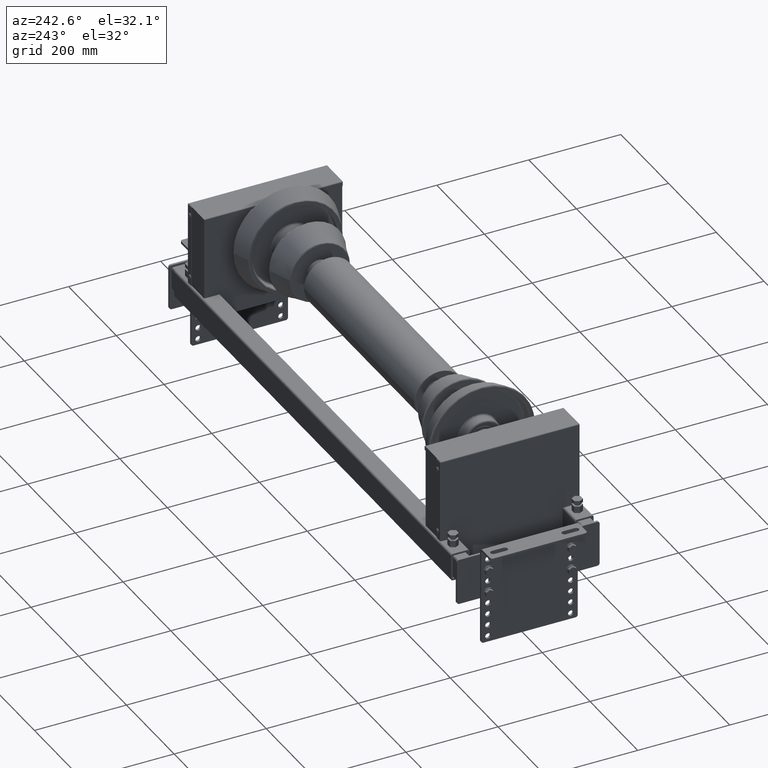
[diagram: clean part render]
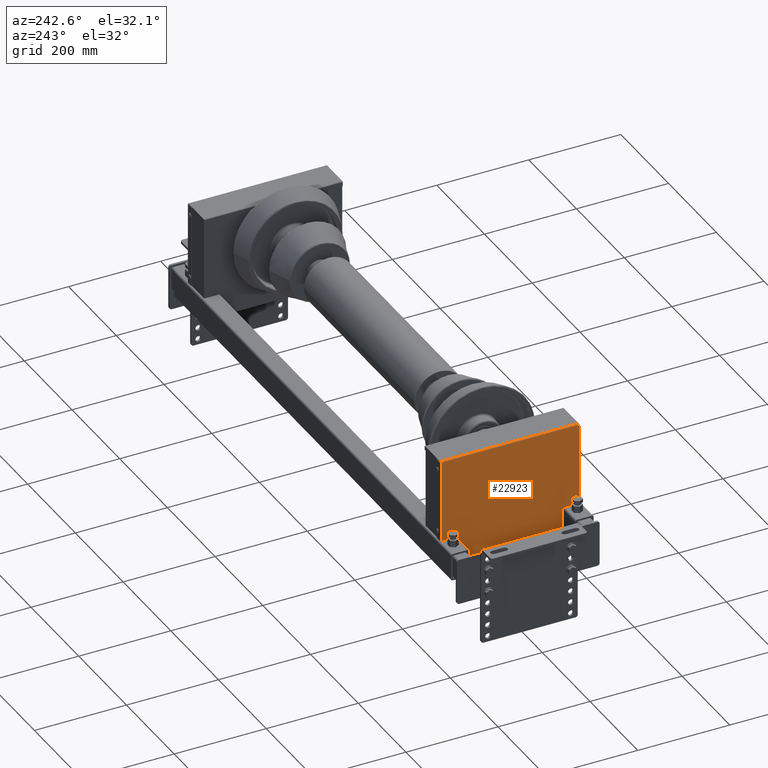
[diagram: same view with one face highlighted and labeled with its STEP entity id]
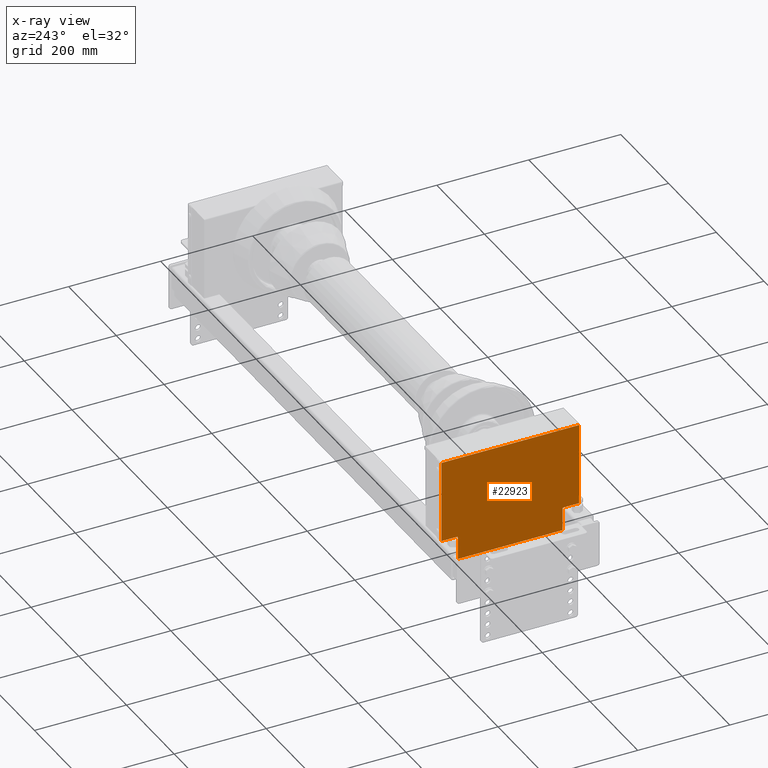
[diagram: x-ray of the same camera — body ghosted, the highlighted face saturated]
A machine part, auxiliary view. The second image highlights one B-rep face of the part: STEP entity #22923.
The next image is the same camera in x-ray: the body ghosted, the highlighted face saturated — about 0% of this face is hidden behind the body in this view.
In plain terms, the highlighted planar face has unit normal (1, 0, -0).
Its self-contained STEP definition (entity closure, byte-faithful):
#22005=CARTESIAN_POINT('',(-56.0,-93.500000000000114,-0.500000000000000));
#22006=VERTEX_POINT('',#22005);
#22007=CARTESIAN_POINT('',(-54.0,-95.500000000000114,-0.500000000000000));
#22008=VERTEX_POINT('',#22007);
#22009=CARTESIAN_POINT('',(-56.0,-95.500000000000114,-0.500000000000000));
#22010=DIRECTION('',(0.0,0.0,-1.000000000000000));
#22011=DIRECTION('',(0.707106781186548,0.707106781186548,0.0));
#22012=AXIS2_PLACEMENT_3D('',#22009,#22010,#22011);
#22013=CIRCLE('',#22012,2.000000000000000);
#22014=EDGE_CURVE('',#22006,#22008,#22013,.T.);
#22048=CARTESIAN_POINT('',(-54.0,-144.500000000000110,-0.500000000000000));
#22049=VERTEX_POINT('',#22048);
#22050=CARTESIAN_POINT('',(-54.0,-144.500000000000110,-0.500000000000000));
#22051=DIRECTION('',(0.0,1.0,0.0));
#22052=VECTOR('',#22051,49.0);
#22053=LINE('',#22050,#22052);
#22054=EDGE_CURVE('',#22049,#22008,#22053,.T.);
#22169=CARTESIAN_POINT('',(-89.500000000000000,-93.500000000000114,-0.500000000000000));
#22170=VERTEX_POINT('',#22169);
#22178=CARTESIAN_POINT('',(-56.0,-93.500000000000114,-0.500000000000000));
#22179=DIRECTION('',(-1.0,0.0,0.0));
#22180=VECTOR('',#22179,33.500000000000000);
#22181=LINE('',#22178,#22180);
#22182=EDGE_CURVE('',#22006,#22170,#22181,.T.);
#22616=CARTESIAN_POINT('',(176.0,-93.500000000000114,-0.500000000000000));
#22617=VERTEX_POINT('',#22616);
#22624=CARTESIAN_POINT('',(209.500000000000260,-93.500000000000114,-0.500000000000000));
#22625=VERTEX_POINT('',#22624);
#22626=CARTESIAN_POINT('',(209.500000000000260,-93.500000000000114,-0.500000000000000));
#22627=DIRECTION('',(-1.0,0.0,0.0));
#22628=VECTOR('',#22627,33.500000000000256);
#22629=LINE('',#22626,#22628);
#22630=EDGE_CURVE('',#22625,#22617,#22629,.T.);
#22648=CARTESIAN_POINT('',(174.0,-95.500000000000114,-0.500000000000000));
#22649=VERTEX_POINT('',#22648);
#22650=CARTESIAN_POINT('',(176.0,-95.500000000000114,-0.500000000000000));
#22651=DIRECTION('',(0.0,0.0,-1.000000000000000));
#22652=DIRECTION('',(-0.707106781186548,0.707106781186548,0.0));
#22653=AXIS2_PLACEMENT_3D('',#22650,#22651,#22652);
#22654=CIRCLE('',#22653,2.000000000000000);
#22655=EDGE_CURVE('',#22649,#22617,#22654,.T.);
#22830=CARTESIAN_POINT('',(209.500000000000230,84.500000000000000,-0.500000000000000));
#22831=VERTEX_POINT('',#22830);
#22839=CARTESIAN_POINT('',(-89.500000000000000,84.500000000000000,-0.500000000000000));
#22840=VERTEX_POINT('',#22839);
#22841=CARTESIAN_POINT('',(209.500000000000230,84.500000000000000,-0.500000000000000));
#22842=DIRECTION('',(-1.0,0.0,0.0));
#22843=VECTOR('',#22842,299.000000000000230);
#22844=LINE('',#22841,#22843);
#22845=EDGE_CURVE('',#22831,#22840,#22844,.T.);
#22871=CARTESIAN_POINT('',(-89.500000000000000,84.500000000000000,-0.500000000000000));
#22872=DIRECTION('',(0.0,-1.0,0.0));
#22873=VECTOR('',#22872,178.000000000000110);
#22874=LINE('',#22871,#22873);
#22875=EDGE_CURVE('',#22840,#22170,#22874,.T.);
#22889=CARTESIAN_POINT('',(60.000000000000036,-26.432330827067759,-0.500000000000000));
#22890=DIRECTION('',(0.0,0.0,1.0));
#22891=DIRECTION('',(1.0,0.0,0.0));
#22892=AXIS2_PLACEMENT_3D('',#22889,#22890,#22891);
#22893=PLANE('',#22892);
#22894=ORIENTED_EDGE('',*,*,#22845,.F.);
#22895=CARTESIAN_POINT('',(209.500000000000260,-93.500000000000114,-0.500000000000000));
#22896=DIRECTION('',(0.0,1.0,0.0));
#22897=VECTOR('',#22896,178.000000000000110);
#22898=LINE('',#22895,#22897);
#22899=EDGE_CURVE('',#22625,#22831,#22898,.T.);
#22900=ORIENTED_EDGE('',*,*,#22899,.F.);
#22901=ORIENTED_EDGE('',*,*,#22630,.T.);
#22902=ORIENTED_EDGE('',*,*,#22655,.F.);
#22903=CARTESIAN_POINT('',(174.0,-144.500000000000110,-0.500000000000000));
#22904=VERTEX_POINT('',#22903);
#22905=CARTESIAN_POINT('',(174.0,-95.500000000000114,-0.500000000000000));
#22906=DIRECTION('',(0.0,-1.0,0.0));
#22907=VECTOR('',#22906,49.0);
#22908=LINE('',#22905,#22907);
#22909=EDGE_CURVE('',#22649,#22904,#22908,.T.);
#22910=ORIENTED_EDGE('',*,*,#22909,.T.);
#22911=CARTESIAN_POINT('',(-54.0,-144.500000000000110,-0.500000000000000));
#22912=DIRECTION('',(1.0,0.0,0.0));
#22913=VECTOR('',#22912,228.0);
#22914=LINE('',#22911,#22913);
#22915=EDGE_CURVE('',#22049,#22904,#22914,.T.);
#22916=ORIENTED_EDGE('',*,*,#22915,.F.);
#22917=ORIENTED_EDGE('',*,*,#22054,.T.);
#22918=ORIENTED_EDGE('',*,*,#22014,.F.);
#22919=ORIENTED_EDGE('',*,*,#22182,.T.);
#22920=ORIENTED_EDGE('',*,*,#22875,.F.);
#22921=EDGE_LOOP('',(#22894,#22900,#22901,#22902,#22910,#22916,#22917,#22918,#22919,#22920));
#22922=FACE_OUTER_BOUND('',#22921,.T.);
#22923=ADVANCED_FACE('',(#22922),#22893,.F.);